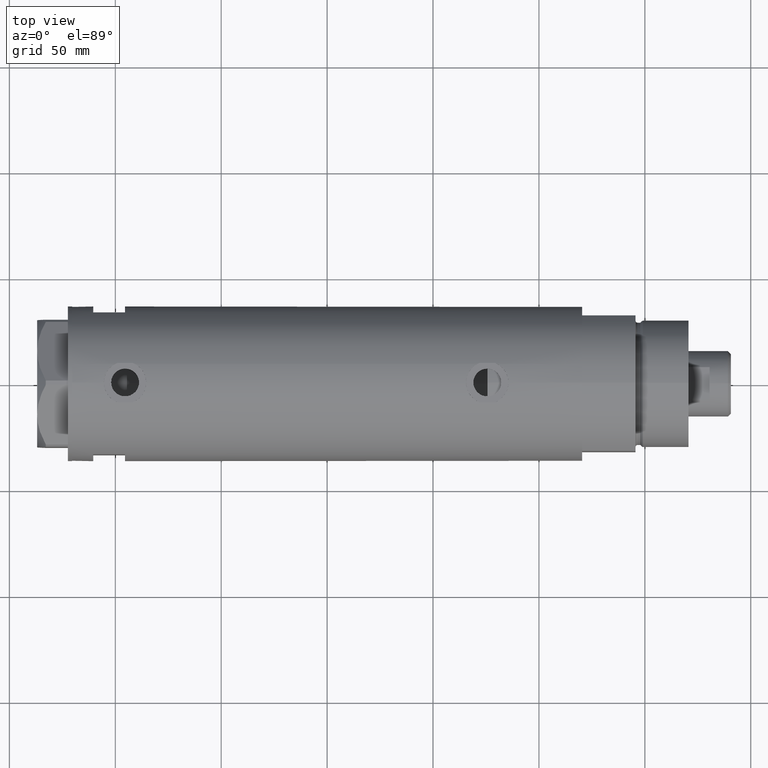
[diagram: clean part render]
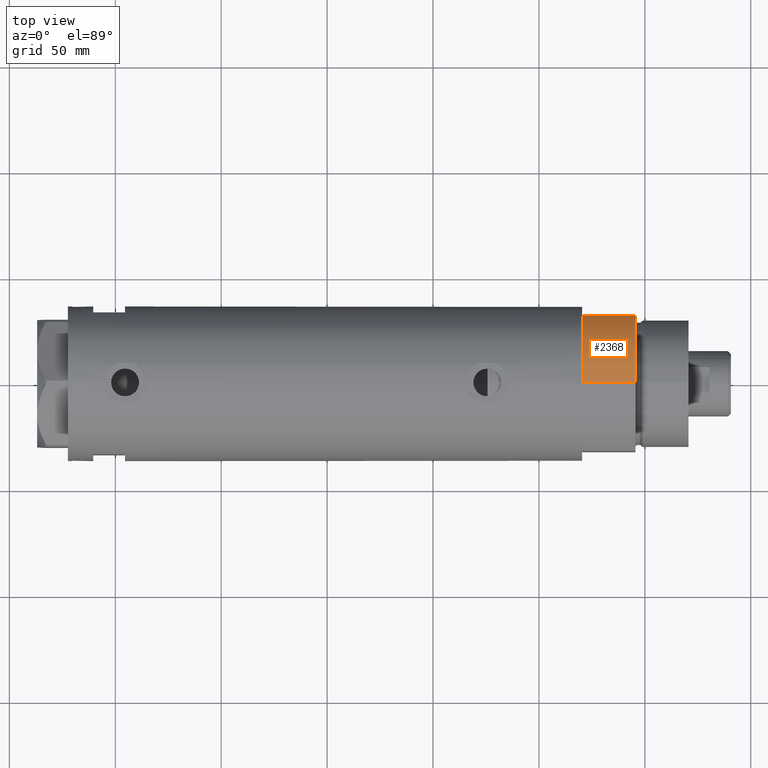
[diagram: same view with one face highlighted and labeled with its STEP entity id]
A machine part, top view. The second image highlights one B-rep face of the part: STEP entity #2368.
In plain terms, the highlighted cylindrical surface (partial cylindrical patch) has radius 36.5 mm, axis along (-1, -0, 0).
Its self-contained STEP definition (entity closure, byte-faithful):
#24 = VECTOR ( 'NONE', #728, 1000.000000000000000 ) ;
#587 = DIRECTION ( 'NONE',  ( 0.000000000000000000, 0.000000000000000000, 1.000000000000000000 ) ) ;
#614 = ORIENTED_EDGE ( 'NONE', *, *, #2448, .F. ) ;
#620 = DIRECTION ( 'NONE',  ( 1.000000000000000000, 0.000000000000000000, 0.000000000000000000 ) ) ;
#670 = LINE ( 'NONE', #2165, #24 ) ;
#728 = DIRECTION ( 'NONE',  ( -0.000000000000000000, -0.000000000000000000, -1.000000000000000000 ) ) ;
#1053 = CIRCLE ( 'NONE', #3045, 36.50000000000000000 ) ;
#1493 = AXIS2_PLACEMENT_3D ( 'NONE', #2060, #4625, #2850 ) ;
#1557 = CIRCLE ( 'NONE', #3715, 36.50000000000000000 ) ;
#1566 = EDGE_CURVE ( 'NONE', #3003, #4558, #670, .T. ) ;
#1631 = LINE ( 'NONE', #4677, #1643 ) ;
#1643 = VECTOR ( 'NONE', #3139, 1000.000000000000000 ) ;
#1747 = EDGE_CURVE ( 'NONE', #3753, #4558, #1557, .T. ) ;
#2060 = CARTESIAN_POINT ( 'NONE',  ( 0.000000000000000000, 0.000000000000000000, 25.19999999999999929 ) ) ;
#2072 = DIRECTION ( 'NONE',  ( 1.000000000000000000, 0.000000000000000000, 0.000000000000000000 ) ) ;
#2158 = CARTESIAN_POINT ( 'NONE',  ( 0.000000000000000000, 0.000000000000000000, 0.000000000000000000 ) ) ;
#2165 = CARTESIAN_POINT ( 'NONE',  ( -36.50000000000000000, 0.000000000000000000, 25.19999999999999929 ) ) ;
#2368 = ADVANCED_FACE ( 'NONE', ( #4585 ), #3109, .T. ) ;
#2448 = EDGE_CURVE ( 'NONE', #3753, #3151, #1631, .T. ) ;
#2564 = CARTESIAN_POINT ( 'NONE',  ( -36.50000000000000000, 0.000000000000000000, 0.000000000000000000 ) ) ;
#2686 = EDGE_LOOP ( 'NONE', ( #4552, #4402, #614, #3349 ) ) ;
#2850 = DIRECTION ( 'NONE',  ( -1.000000000000000000, 0.000000000000000000, 0.000000000000000000 ) ) ;
#3003 = VERTEX_POINT ( 'NONE', #4714 ) ;
#3045 = AXIS2_PLACEMENT_3D ( 'NONE', #4574, #587, #2072 ) ;
#3109 = CYLINDRICAL_SURFACE ( 'NONE', #1493, 36.50000000000000000 ) ;
#3139 = DIRECTION ( 'NONE',  ( -0.000000000000000000, -0.000000000000000000, 1.000000000000000000 ) ) ;
#3151 = VERTEX_POINT ( 'NONE', #3768 ) ;
#3349 = ORIENTED_EDGE ( 'NONE', *, *, #1747, .T. ) ;
#3631 = DIRECTION ( 'NONE',  ( 0.000000000000000000, 0.000000000000000000, 1.000000000000000000 ) ) ;
#3715 = AXIS2_PLACEMENT_3D ( 'NONE', #2158, #3631, #620 ) ;
#3753 = VERTEX_POINT ( 'NONE', #4684 ) ;
#3768 = CARTESIAN_POINT ( 'NONE',  ( -17.55704986607943496, 32.00000000000000000, 25.19999999999999929 ) ) ;
#4402 = ORIENTED_EDGE ( 'NONE', *, *, #4469, .F. ) ;
#4469 = EDGE_CURVE ( 'NONE', #3151, #3003, #1053, .T. ) ;
#4552 = ORIENTED_EDGE ( 'NONE', *, *, #1566, .F. ) ;
#4558 = VERTEX_POINT ( 'NONE', #2564 ) ;
#4574 = CARTESIAN_POINT ( 'NONE',  ( 0.000000000000000000, 0.000000000000000000, 25.19999999999999929 ) ) ;
#4585 = FACE_OUTER_BOUND ( 'NONE', #2686, .T. ) ;
#4625 = DIRECTION ( 'NONE',  ( -0.000000000000000000, -0.000000000000000000, -1.000000000000000000 ) ) ;
#4677 = CARTESIAN_POINT ( 'NONE',  ( -17.55704986607943141, 32.00000000000000000, 0.000000000000000000 ) ) ;
#4684 = CARTESIAN_POINT ( 'NONE',  ( -17.55704986607943141, 32.00000000000000000, 0.000000000000000000 ) ) ;
#4714 = CARTESIAN_POINT ( 'NONE',  ( -36.50000000000000000, 0.000000000000000000, 25.19999999999999929 ) ) ;